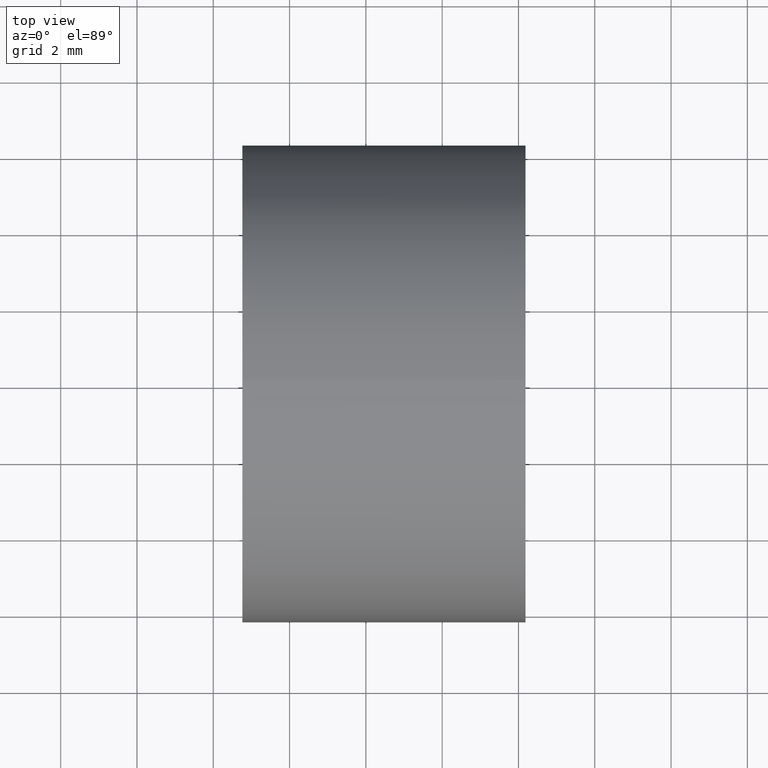
[diagram: clean part render]
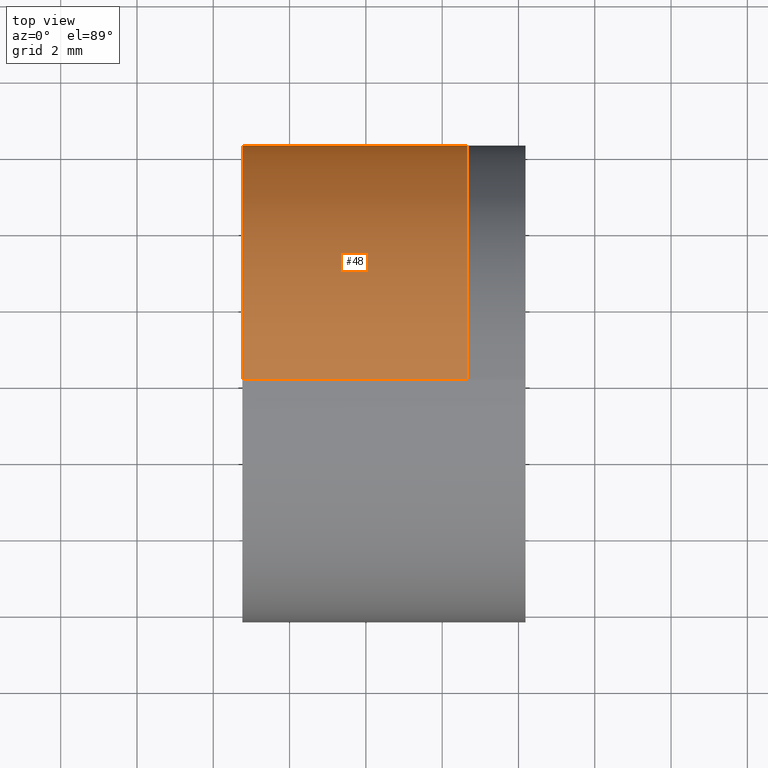
[diagram: same view with one face highlighted and labeled with its STEP entity id]
A machine part, top view. The second image highlights one B-rep face of the part: STEP entity #48.
In plain terms, the highlighted cylindrical surface (partial cylindrical patch) has radius 6.25 mm, axis along (-1, -0, 0).
Its self-contained STEP definition (entity closure, byte-faithful):
#3 = VERTEX_POINT ( 'NONE', #164 ) ;
#6 = CARTESIAN_POINT ( 'NONE',  ( 230.6595650911643500, 0.0000000000000000000, 6.249999999999999100 ) ) ;
#24 = DIRECTION ( 'NONE',  ( 0.0000000000000000000, 0.0000000000000000000, 1.000000000000000000 ) ) ;
#33 = VERTEX_POINT ( 'NONE', #133 ) ;
#38 = CIRCLE ( 'NONE', #119, 6.250000000000041700 ) ;
#47 = VECTOR ( 'NONE', #299, 1000.000000000000000 ) ;
#48 = ADVANCED_FACE ( 'NONE', ( #50 ), #106, .T. ) ;
#50 = FACE_OUTER_BOUND ( 'NONE', #168, .T. ) ;
#63 = CARTESIAN_POINT ( 'NONE',  ( -0.8160621761658051200, 7.654042494671008900E-016, -6.250000000000041700 ) ) ;
#70 = VERTEX_POINT ( 'NONE', #258 ) ;
#78 = DIRECTION ( 'NONE',  ( -1.000000000000000000, -0.0000000000000000000, 1.836970198721029700E-016 ) ) ;
#84 = VECTOR ( 'NONE', #78, 1000.000000000000000 ) ;
#92 = AXIS2_PLACEMENT_3D ( 'NONE', #162, #138, #295 ) ;
#98 = ORIENTED_EDGE ( 'NONE', *, *, #117, .T. ) ;
#99 = DIRECTION ( 'NONE',  ( -1.000000000000000000, -0.0000000000000000000, 1.836970198721029700E-016 ) ) ;
#106 = CYLINDRICAL_SURFACE ( 'NONE', #92, 6.250000000000041700 ) ;
#109 = EDGE_CURVE ( 'NONE', #70, #33, #190, .T. ) ;
#117 = EDGE_CURVE ( 'NONE', #3, #33, #265, .T. ) ;
#119 = AXIS2_PLACEMENT_3D ( 'NONE', #336, #120, #24 ) ;
#120 = DIRECTION ( 'NONE',  ( -1.000000000000000000, -0.0000000000000000000, 1.836970198721029700E-016 ) ) ;
#127 = CARTESIAN_POINT ( 'NONE',  ( 224.7643804590949800, 0.0000000000000000000, -4.143845505352728400E-014 ) ) ;
#133 = CARTESIAN_POINT ( 'NONE',  ( 224.7643804590949800, 7.654042494671005900E-016, -6.250000000000042600 ) ) ;
#138 = DIRECTION ( 'NONE',  ( -1.000000000000000000, -0.0000000000000000000, 1.836970198721029700E-016 ) ) ;
#154 = ORIENTED_EDGE ( 'NONE', *, *, #223, .F. ) ;
#158 = AXIS2_PLACEMENT_3D ( 'NONE', #127, #99, #286 ) ;
#162 = CARTESIAN_POINT ( 'NONE',  ( -0.8160621761658039000, 0.0000000000000000000, 0.0000000000000000000 ) ) ;
#164 = CARTESIAN_POINT ( 'NONE',  ( 230.6595650911643500, 7.654042494671010900E-016, -6.250000000000085300 ) ) ;
#168 = EDGE_LOOP ( 'NONE', ( #332, #98, #196, #154 ) ) ;
#190 = CIRCLE ( 'NONE', #158, 6.250000000000040900 ) ;
#196 = ORIENTED_EDGE ( 'NONE', *, *, #109, .F. ) ;
#223 = EDGE_CURVE ( 'NONE', #257, #70, #294, .T. ) ;
#257 = VERTEX_POINT ( 'NONE', #6 ) ;
#258 = CARTESIAN_POINT ( 'NONE',  ( 224.7643804590949800, 0.0000000000000000000, 6.249999999999998200 ) ) ;
#265 = LINE ( 'NONE', #63, #47 ) ;
#278 = EDGE_CURVE ( 'NONE', #257, #3, #38, .T. ) ;
#286 = DIRECTION ( 'NONE',  ( 0.0000000000000000000, 0.0000000000000000000, 1.000000000000000000 ) ) ;
#294 = LINE ( 'NONE', #324, #84 ) ;
#295 = DIRECTION ( 'NONE',  ( 1.908195823574475000E-016, 0.0000000000000000000, 1.000000000000000000 ) ) ;
#299 = DIRECTION ( 'NONE',  ( -1.000000000000000000, -0.0000000000000000000, 1.836970198721029700E-016 ) ) ;
#324 = CARTESIAN_POINT ( 'NONE',  ( -0.8160621761658027900, 0.0000000000000000000, 6.250000000000041700 ) ) ;
#332 = ORIENTED_EDGE ( 'NONE', *, *, #278, .T. ) ;
#336 = CARTESIAN_POINT ( 'NONE',  ( 230.6595650911643500, 0.0000000000000000000, -4.252138290203425000E-014 ) ) ;